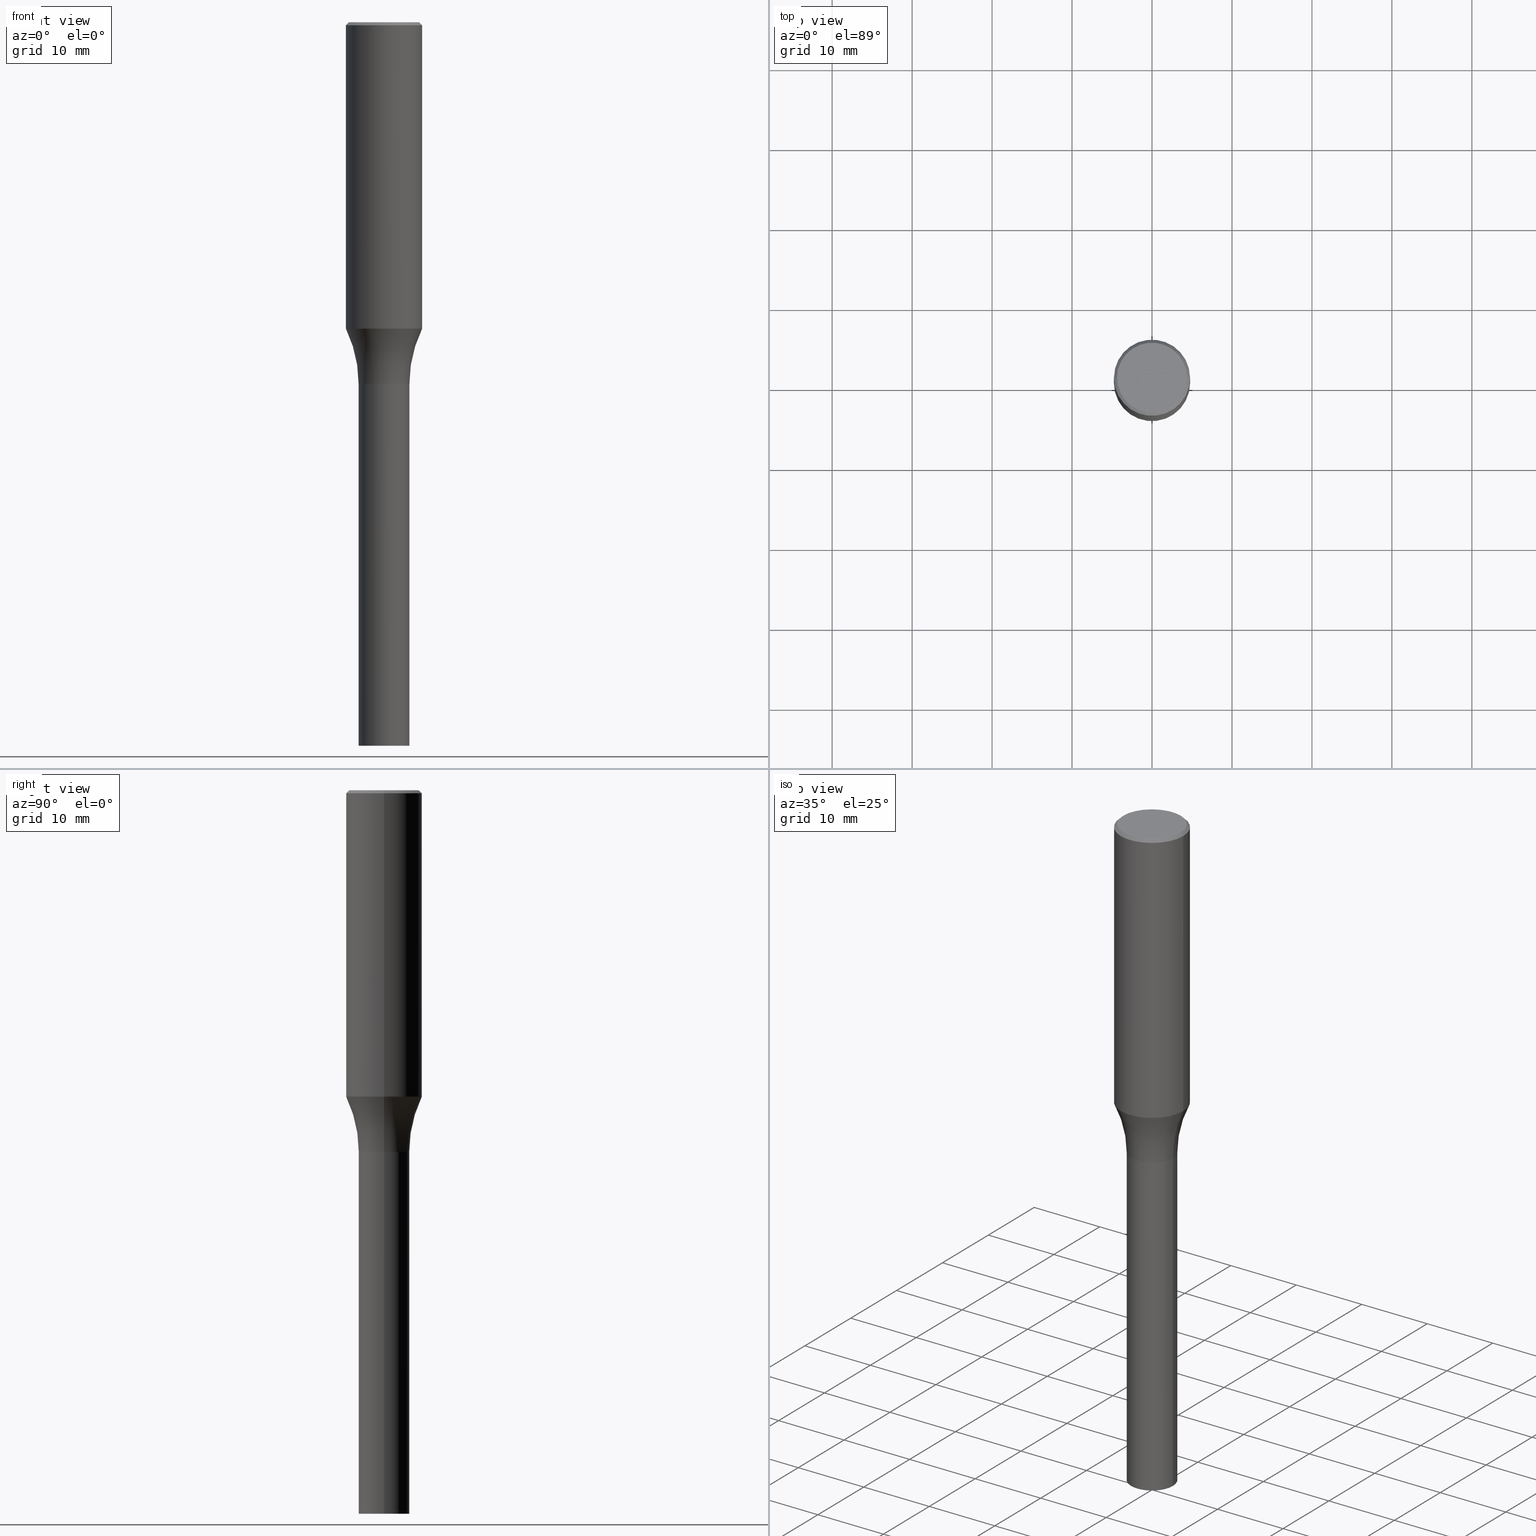
[diagram: canonical four-view strip — front | top / right | iso, engineering-drawing reading convention]
A machine part, canonical four-view strip (front | top / right | iso — engineering-drawing reading convention). The complete STEP part file that produces these views, byte-faithful:
ISO-10303-21;
HEADER;
FILE_DESCRIPTION (( 'STEP AP203' ),
    '1' );
FILE_NAME ('34505.STEP',
    '2024-03-04T15:28:11',
    ( '' ),
    ( '' ),
    'SwSTEP 2.0',
    'SolidWorks 2023',
    '' );
FILE_SCHEMA (( 'CONFIG_CONTROL_DESIGN' ));
ENDSEC;

DATA;
#1 = ORIENTED_EDGE ( 'NONE', *, *, #356, .F. ) ;
#2 = DIRECTION ( 'NONE',  ( 1.000000000000000000, -6.982962677686265922E-15, 4.876176775795935793E-29 ) ) ;
#3 = VERTEX_POINT ( 'NONE', #279 ) ;
#4 = CIRCLE ( 'NONE', #274, 0.1249999999999999861 ) ;
#5 = DIRECTION ( 'NONE',  ( -2.445468806185136877E-29, 3.491481338843145188E-15, 1.000000000000000000 ) ) ;
#6 = EDGE_CURVE ( 'NONE', #176, #272, #51, .T. ) ;
#7 = CYLINDRICAL_SURFACE ( 'NONE', #52, 0.1249999999999999584 ) ;
#8 = PERSON_AND_ORGANIZATION_ROLE ( 'creator' ) ;
#9 = CARTESIAN_POINT ( 'NONE',  ( 4.355379943815728162E-29, -6.218328264479641837E-15, -1.780999999999999917 ) ) ;
#10 = AXIS2_PLACEMENT_3D ( 'NONE', #12, #252, #251 ) ;
#11 = ORIENTED_EDGE ( 'NONE', *, *, #374, .T. ) ;
#12 = CARTESIAN_POINT ( 'NONE',  ( 3.689157981581848142E-29, -5.267139869524930466E-15, -1.508568816028707404 ) ) ;
#13 = DATE_TIME_ROLE ( 'creation_date' ) ;
#14 = CARTESIAN_POINT ( 'NONE',  ( -0.1725000000000000144, 1.230747171942204192E-15, -6.181208964945233235E-17 ) ) ;
#15 = CARTESIAN_POINT ( 'NONE',  ( -0.1875000000000000278, 1.256933281983527732E-15, -0.01499999999999999944 ) ) ;
#16 = EDGE_LOOP ( 'NONE', ( #64, #370, #96, #81 ) ) ;
#17 = EDGE_CURVE ( 'NONE', #417, #43, #453, .T. ) ;
#18 = CARTESIAN_POINT ( 'NONE',  ( 4.431189476807466720E-29, -6.326564185983779002E-15, -1.811999999999999611 ) ) ;
#19 = EDGE_LOOP ( 'NONE', ( #40, #59, #406, #360 ) ) ;
#20 = TOROIDAL_SURFACE ( 'NONE', #376, 0.7499999999999998890, 0.6250000000000000000 ) ;
#21 = DIRECTION ( 'NONE',  ( -2.445468806185136877E-29, 3.491481338843145188E-15, 1.000000000000000000 ) ) ;
#22 = VECTOR ( 'NONE', #185, 39.37007874015748143 ) ;
#23 = CIRCLE ( 'NONE', #418, 0.1725000000000000144 ) ;
#24 = ORIENTED_EDGE ( 'NONE', *, *, #203, .T. ) ;
#25 = AXIS2_PLACEMENT_3D ( 'NONE', #9, #392, #110 ) ;
#26 = DIRECTION ( 'NONE',  ( -2.445468806185136597E-29, 3.491481338843145583E-15, 1.000000000000000000 ) ) ;
#27 = APPLICATION_CONTEXT ( 'configuration controlled 3d designs of mechanical parts and assemblies' ) ;
#28 = EDGE_CURVE ( 'NONE', #457, #43, #347, .T. ) ;
#29 = EDGE_CURVE ( 'NONE', #451, #195, #353, .T. ) ;
#30 = ADVANCED_FACE ( 'NONE', ( #289 ), #61, .T. ) ;
#31 = AXIS2_PLACEMENT_3D ( 'NONE', #425, #182, #36 ) ;
#32 = COORDINATED_UNIVERSAL_TIME_OFFSET ( 5, 0, .BEHIND. ) ;
#33 = DIRECTION ( 'NONE',  ( -1.000000000000000000, 6.982962677686265922E-15, 0.000000000000000000 ) ) ;
#34 = DATE_AND_TIME ( #351, #310 ) ;
#35 = CARTESIAN_POINT ( 'NONE',  ( 3.668203209277705088E-31, -5.237222008264718399E-17, -0.01499999999999999944 ) ) ;
#36 = DIRECTION ( 'NONE',  ( 1.000000000000000000, -6.982962677686262766E-15, 0.000000000000000000 ) ) ;
#37 = DATE_AND_TIME ( #118, #309 ) ;
#38 = CARTESIAN_POINT ( 'NONE',  ( 4.355379943815728162E-29, -6.218328264479641837E-15, -1.780999999999999917 ) ) ;
#39 = DIRECTION ( 'NONE',  ( 1.000000000000000000, -6.982962677686259611E-15, 0.000000000000000000 ) ) ;
#40 = ORIENTED_EDGE ( 'NONE', *, *, #6, .F. ) ;
#41 = CYLINDRICAL_SURFACE ( 'NONE', #354, 0.1250000000000000555 ) ;
#42 = ADVANCED_FACE ( 'NONE', ( #385 ), #248, .T. ) ;
#43 = VERTEX_POINT ( 'NONE', #148 ) ;
#44 = DIRECTION ( 'NONE',  ( 1.000000000000000000, -6.982962677686263555E-15, 0.000000000000000000 ) ) ;
#45 = ADVANCED_FACE ( 'NONE', ( #149 ), #432, .T. ) ;
#46 = ORIENTED_EDGE ( 'NONE', *, *, #320, .F. ) ;
#47 = FACE_OUTER_BOUND ( 'NONE', #225, .T. ) ;
#48 = DIRECTION ( 'NONE',  ( -2.445468806185136877E-29, 3.491481338843145188E-15, 1.000000000000000000 ) ) ;
#49 = AXIS2_PLACEMENT_3D ( 'NONE', #124, #328, #267 ) ;
#50 = CARTESIAN_POINT ( 'NONE',  ( 3.689157981581848142E-29, -5.267139869524930466E-15, -1.508568816028707404 ) ) ;
#51 = LINE ( 'NONE', #341, #143 ) ;
#52 = AXIS2_PLACEMENT_3D ( 'NONE', #196, #130, #271 ) ;
#53 = ORIENTED_EDGE ( 'NONE', *, *, #135, .T. ) ;
#54 = ORIENTED_EDGE ( 'NONE', *, *, #220, .F. ) ;
#55 = ORIENTED_EDGE ( 'NONE', *, *, #291, .T. ) ;
#56 = LENGTH_MEASURE_WITH_UNIT ( LENGTH_MEASURE( 0.02539999999999999897 ), #60 );
#57 = DIRECTION ( 'NONE',  ( 1.000000000000000000, -6.982962677686265922E-15, 0.000000000000000000 ) ) ;
#58 = PRODUCT_RELATED_PRODUCT_CATEGORY ( 'detail', '', ( #120 ) ) ;
#59 = ORIENTED_EDGE ( 'NONE', *, *, #74, .T. ) ;
#60 =( LENGTH_UNIT ( ) NAMED_UNIT ( * ) SI_UNIT ( $, .METRE. ) );
#61 = CONICAL_SURFACE ( 'NONE', #87, 0.1875000000000000278, 0.7853981633974507215 ) ;
#62 = ADVANCED_FACE ( 'NONE', ( #461 ), #157, .T. ) ;
#63 = AXIS2_PLACEMENT_3D ( 'NONE', #337, #442, #305 ) ;
#64 = ORIENTED_EDGE ( 'NONE', *, *, #313, .T. ) ;
#65 = EDGE_CURVE ( 'NONE', #43, #272, #93, .T. ) ;
#66 = EDGE_LOOP ( 'NONE', ( #98, #239 ) ) ;
#67 = CARTESIAN_POINT ( 'NONE',  ( 0.1875000000000000278, -1.338715594664809642E-15, -0.01499999999999999944 ) ) ;
#68 = MECHANICAL_CONTEXT ( 'NONE', #224, 'mechanical' ) ;
#69 = CARTESIAN_POINT ( 'NONE',  ( 4.431189476807466720E-29, -6.326564185983779002E-15, -1.811999999999999611 ) ) ;
#70 = AXIS2_PLACEMENT_3D ( 'NONE', #210, #348, #244 ) ;
#71 = CARTESIAN_POINT ( 'NONE',  ( 0.1245000000000000689, -7.195943039355718545E-15, -1.811999999999999611 ) ) ;
#72 = DIRECTION ( 'NONE',  ( -2.445468806185136597E-29, 3.491481338843145583E-15, 1.000000000000000000 ) ) ;
#73 = PLANE ( 'NONE',  #207 ) ;
#74 = EDGE_CURVE ( 'NONE', #176, #417, #159, .T. ) ;
#75 = CC_DESIGN_PERSON_AND_ORGANIZATION_ASSIGNMENT ( #327, #8, ( #452 ) ) ;
#76 = VERTEX_POINT ( 'NONE', #334 ) ;
#77 = ADVANCED_FACE ( 'NONE', ( #114 ), #126, .F. ) ;
#78 = LINE ( 'NONE', #152, #115 ) ;
#79 = DIRECTION ( 'NONE',  ( 1.000000000000000000, -6.982962677686267499E-15, 4.876176775795936353E-29 ) ) ;
#80 = MANIFOLD_SOLID_BREP ( 'Body-Move/Copy2[1]', #112 ) ;
#81 = ORIENTED_EDGE ( 'NONE', *, *, #17, .F. ) ;
#82 = PERSON_AND_ORGANIZATION ( #237, #330 ) ;
#83 = CARTESIAN_POINT ( 'NONE',  ( 1.204561061900881047E-15, 0.1725000000000000144, -6.331865757751645696E-16 ) ) ;
#84 = CARTESIAN_POINT ( 'NONE',  ( 0.000000000000000000, 0.000000000000000000, 0.000000000000000000 ) ) ;
#85 = EDGE_LOOP ( 'NONE', ( #373, #91, #190, #131 ) ) ;
#86 = SECURITY_CLASSIFICATION_LEVEL ( 'unclassified' ) ;
#87 = AXIS2_PLACEMENT_3D ( 'NONE', #145, #104, #319 ) ;
#88 = FACE_OUTER_BOUND ( 'NONE', #336, .T. ) ;
#89 = AXIS2_PLACEMENT_3D ( 'NONE', #386, #181, #318 ) ;
#90 = CARTESIAN_POINT ( 'NONE',  ( 0.1250000000000000555, -1.330952686367006701E-14, -3.561999999999999833 ) ) ;
#91 = ORIENTED_EDGE ( 'NONE', *, *, #245, .T. ) ;
#92 = EDGE_LOOP ( 'NONE', ( #127, #46 ) ) ;
#93 = CIRCLE ( 'NONE', #349, 0.1875000000000000278 ) ;
#94 = DESIGN_CONTEXT ( 'detailed design', #27, 'design' ) ;
#95 = AXIS2_PLACEMENT_3D ( 'NONE', #38, #262, #288 ) ;
#96 = ORIENTED_EDGE ( 'NONE', *, *, #65, .F. ) ;
#97 =( NAMED_UNIT ( * ) SI_UNIT ( $, .STERADIAN. ) SOLID_ANGLE_UNIT ( ) );
#98 = ORIENTED_EDGE ( 'NONE', *, *, #29, .F. ) ;
#99 = UNCERTAINTY_MEASURE_WITH_UNIT (LENGTH_MEASURE( 1.000000000000000082E-05 ), #205, 'distance_accuracy_value', 'NONE');
#100 = ORIENTED_EDGE ( 'NONE', *, *, #294, .T. ) ;
#101 = VECTOR ( 'NONE', #48, 39.37007874015748143 ) ;
#102 = APPROVAL_ROLE ( '' ) ;
#103 = DIMENSIONAL_EXPONENTS ( 1.000000000000000000, 0.000000000000000000, 0.000000000000000000, 0.000000000000000000, 0.000000000000000000, 0.000000000000000000, 0.000000000000000000 ) ;
#104 = DIRECTION ( 'NONE',  ( 2.445468806185136597E-29, -3.491481338843145583E-15, -1.000000000000000000 ) ) ;
#105 = APPLICATION_PROTOCOL_DEFINITION ( 'international standard', 'config_control_design', 1994, #224 ) ;
#106 = CC_DESIGN_APPROVAL ( #134, ( #339 ) ) ;
#107 = CC_DESIGN_APPROVAL ( #448, ( #211 ) ) ;
#108 = DIRECTION ( 'NONE',  ( 7.105427357601001859E-15, 1.000000000000000000, -3.491481338843145583E-15 ) ) ;
#109 = EDGE_CURVE ( 'NONE', #242, #273, #4, .T. ) ;
#110 = DIRECTION ( 'NONE',  ( 1.000000000000000000, -6.982962677686265133E-15, 0.000000000000000000 ) ) ;
#111 = ADVANCED_FACE ( 'NONE', ( #258 ), #165, .T. ) ;
#112 = CLOSED_SHELL ( 'NONE', ( #111, #281, #387, #450 ) ) ;
#113 = CARTESIAN_POINT ( 'NONE',  ( -0.1250000000000000000, -5.383394935196874435E-15, -1.811499999999999888 ) ) ;
#114 = FACE_OUTER_BOUND ( 'NONE', #92, .T. ) ;
#115 = VECTOR ( 'NONE', #300, 39.37007874015748143 ) ;
#116 = ORIENTED_EDGE ( 'NONE', *, *, #462, .F. ) ;
#117 = LINE ( 'NONE', #293, #101 ) ;
#118 = CALENDAR_DATE ( 2024, 4, 3 ) ;
#119 = CYLINDRICAL_SURFACE ( 'NONE', #138, 0.1875000000000000555 ) ;
#120 = PRODUCT ( '34505', '34505', '', ( #68 ) ) ;
#121 = PERSON_AND_ORGANIZATION_ROLE ( 'classification_officer' ) ;
#122 = CARTESIAN_POINT ( 'NONE',  ( 4.429966742404374479E-29, -6.324818445314357499E-15, -1.811499999999999888 ) ) ;
#123 = CALENDAR_DATE ( 2024, 4, 3 ) ;
#124 = CARTESIAN_POINT ( 'NONE',  ( 8.728703347108280081E-16, 0.1249999999999937272, -1.812000000000000277 ) ) ;
#125 = EDGE_LOOP ( 'NONE', ( #1, #24, #221, #297 ) ) ;
#126 = PLANE ( 'NONE',  #213 ) ;
#127 = ORIENTED_EDGE ( 'NONE', *, *, #212, .F. ) ;
#128 = LOCAL_TIME ( 10, 28, 11.00000000000000000, #222 ) ;
#129 = AXIS2_PLACEMENT_3D ( 'NONE', #69, #146, #246 ) ;
#130 = DIRECTION ( 'NONE',  ( -2.445468806185136597E-29, 3.491481338843145583E-15, 1.000000000000000000 ) ) ;
#131 = ORIENTED_EDGE ( 'NONE', *, *, #374, .F. ) ;
#132 = ORIENTED_EDGE ( 'NONE', *, *, #28, .T. ) ;
#133 = EDGE_CURVE ( 'NONE', #3, #234, #136, .T. ) ;
#134 = APPROVAL ( #366, 'UNSPECIFIED' ) ;
#135 = EDGE_CURVE ( 'NONE', #234, #3, #256, .T. ) ;
#136 = CIRCLE ( 'NONE', #63, 0.1250000000000000555 ) ;
#137 = CARTESIAN_POINT ( 'NONE',  ( 0.1875000000000000555, -1.309305502066175205E-15, 9.142831454617382414E-30 ) ) ;
#138 = AXIS2_PLACEMENT_3D ( 'NONE', #296, #263, #400 ) ;
#139 = ORIENTED_EDGE ( 'NONE', *, *, #212, .T. ) ;
#140 = ORIENTED_EDGE ( 'NONE', *, *, #65, .T. ) ;
#141 = ORIENTED_EDGE ( 'NONE', *, *, #109, .F. ) ;
#142 = ORIENTED_EDGE ( 'NONE', *, *, #315, .T. ) ;
#143 = VECTOR ( 'NONE', #343, 39.37007874015748143 ) ;
#144 = CIRCLE ( 'NONE', #436, 0.1249999999999999861 ) ;
#145 = CARTESIAN_POINT ( 'NONE',  ( 3.668203209277705088E-31, -5.237222008264718399E-17, -0.01499999999999999944 ) ) ;
#146 = DIRECTION ( 'NONE',  ( -2.445468806185136597E-29, 3.491481338843145583E-15, 1.000000000000000000 ) ) ;
#147 = APPROVAL_STATUS ( 'not_yet_approved' ) ;
#148 = CARTESIAN_POINT ( 'NONE',  ( 0.1875000000000000278, -1.338715594664809642E-15, -0.01499999999999999944 ) ) ;
#149 = FACE_OUTER_BOUND ( 'NONE', #377, .T. ) ;
#150 = AXIS2_PLACEMENT_3D ( 'NONE', #335, #230, #372 ) ;
#151 = DIRECTION ( 'NONE',  ( -1.000000000000000000, 7.105427357601001859E-15, 0.000000000000000000 ) ) ;
#152 = CARTESIAN_POINT ( 'NONE',  ( -0.1249999999999999584, 8.881784197001249365E-16, -6.148668862818630826E-30 ) ) ;
#153 = CC_DESIGN_DATE_AND_TIME_ASSIGNMENT ( #198, #226, ( #339 ) ) ;
#154 = ADVANCED_FACE ( 'NONE', ( #88 ), #20, .F. ) ;
#155 = SHAPE_DEFINITION_REPRESENTATION ( #440, #422 ) ;
#156 = ORIENTED_EDGE ( 'NONE', *, *, #109, .T. ) ;
#157 = CYLINDRICAL_SURFACE ( 'NONE', #307, 0.1249999999999999584 ) ;
#158 = FACE_OUTER_BOUND ( 'NONE', #346, .T. ) ;
#159 = CIRCLE ( 'NONE', #414, 0.1875000000000000555 ) ;
#160 = ORIENTED_EDGE ( 'NONE', *, *, #356, .T. ) ;
#161 = CARTESIAN_POINT ( 'NONE',  ( 4.355379943815728162E-29, -6.218328264479641837E-15, -1.780999999999999917 ) ) ;
#162 = APPROVAL_DATE_TIME ( #401, #410 ) ;
#163 = ORIENTED_EDGE ( 'NONE', *, *, #375, .T. ) ;
#164 = CYLINDRICAL_SURFACE ( 'NONE', #282, 0.1875000000000000555 ) ;
#165 = CYLINDRICAL_SURFACE ( 'NONE', #286, 0.1250000000000000555 ) ;
#166 = PERSON_AND_ORGANIZATION ( #237, #330 ) ;
#167 = DIRECTION ( 'NONE',  ( 1.000000000000000000, -6.982962677686263555E-15, 0.000000000000000000 ) ) ;
#168 = APPROVAL_DATE_TIME ( #37, #134 ) ;
#169 = CIRCLE ( 'NONE', #25, 0.1249999999999999584 ) ;
#170 = ADVANCED_FACE ( 'NONE', ( #447 ), #7, .T. ) ;
#171 = ADVANCED_FACE ( 'NONE', ( #408 ), #119, .T. ) ;
#172 = APPROVAL_PERSON_ORGANIZATION ( #166, #410, #193 ) ;
#173 = LINE ( 'NONE', #15, #228 ) ;
#174 = TOROIDAL_SURFACE ( 'NONE', #95, 0.7499999999999998890, 0.6250000000000000000 ) ;
#175 = ORIENTED_EDGE ( 'NONE', *, *, #133, .T. ) ;
#176 = VERTEX_POINT ( 'NONE', #257 ) ;
#177 = COORDINATED_UNIVERSAL_TIME_OFFSET ( 5, 0, .BEHIND. ) ;
#178 = CIRCLE ( 'NONE', #10, 0.1875000000000000555 ) ;
#179 = ADVANCED_FACE ( 'NONE', ( #280 ), #304, .T. ) ;
#180 = CARTESIAN_POINT ( 'NONE',  ( 3.668203209277705088E-31, -5.237222008264718399E-17, -0.01499999999999999944 ) ) ;
#181 = DIRECTION ( 'NONE',  ( -2.445468806185136597E-29, 3.491481338843145583E-15, 1.000000000000000000 ) ) ;
#182 = DIRECTION ( 'NONE',  ( -2.445468806185136597E-29, 3.491481338843145583E-15, 1.000000000000000000 ) ) ;
#183 = PERSON_AND_ORGANIZATION_ROLE ( 'creator' ) ;
#184 = CARTESIAN_POINT ( 'NONE',  ( 0.000000000000000000, 0.000000000000000000, 0.000000000000000000 ) ) ;
#185 = DIRECTION ( 'NONE',  ( 0.7071067811865492381, -7.319954787623260779E-15, -0.7071067811865457964 ) ) ;
#186 = CARTESIAN_POINT ( 'NONE',  ( 0.000000000000000000, 0.000000000000000000, 0.000000000000000000 ) ) ;
#187 = DIRECTION ( 'NONE',  ( -2.445468806185136597E-29, 3.491481338843145583E-15, 1.000000000000000000 ) ) ;
#188 = ORIENTED_EDGE ( 'NONE', *, *, #322, .F. ) ;
#189 = DIRECTION ( 'NONE',  ( -2.445468806185136877E-29, 3.491481338843145188E-15, 1.000000000000000000 ) ) ;
#190 = ORIENTED_EDGE ( 'NONE', *, *, #462, .T. ) ;
#191 = CARTESIAN_POINT ( 'NONE',  ( 8.758450869083629996E-29, -1.236836032911767685E-14, -3.561999999999999833 ) ) ;
#192 = DIRECTION ( 'NONE',  ( -2.438088387897960049E-29, 3.491481338843145188E-15, 1.000000000000000000 ) ) ;
#193 = APPROVAL_ROLE ( '' ) ;
#194 = CLOSED_SHELL ( 'NONE', ( #233, #30, #45, #170, #229, #154, #62, #179, #77, #411, #42, #171 ) ) ;
#195 = VERTEX_POINT ( 'NONE', #215 ) ;
#196 = CARTESIAN_POINT ( 'NONE',  ( 0.000000000000000000, 0.000000000000000000, 0.000000000000000000 ) ) ;
#197 = APPROVAL_PERSON_ORGANIZATION ( #421, #448, #102 ) ;
#198 = DATE_AND_TIME ( #123, #128 ) ;
#199 = DIRECTION ( 'NONE',  ( 1.000000000000000000, -6.982962677686265133E-15, 0.000000000000000000 ) ) ;
#200 = DIRECTION ( 'NONE',  ( -2.445468806185136597E-29, 3.491481338843145583E-15, 1.000000000000000000 ) ) ;
#201 = CARTESIAN_POINT ( 'NONE',  ( 4.431189476807466720E-29, -6.326564185983779002E-15, -1.811999999999999611 ) ) ;
#202 = VECTOR ( 'NONE', #21, 39.37007874015748143 ) ;
#203 = EDGE_CURVE ( 'NONE', #195, #451, #382, .T. ) ;
#204 = VECTOR ( 'NONE', #331, 39.37007874015748143 ) ;
#205 =( CONVERSION_BASED_UNIT ( 'INCH', #56 ) LENGTH_UNIT ( ) NAMED_UNIT ( #103 ) );
#206 = ORIENTED_EDGE ( 'NONE', *, *, #292, .F. ) ;
#207 = AXIS2_PLACEMENT_3D ( 'NONE', #83, #430, #362 ) ;
#208 = VERTEX_POINT ( 'NONE', #460 ) ;
#209 = ORIENTED_EDGE ( 'NONE', *, *, #291, .F. ) ;
#210 = CARTESIAN_POINT ( 'NONE',  ( 0.000000000000000000, 0.000000000000000000, 0.000000000000000000 ) ) ;
#211 = PRODUCT_DEFINITION ( 'UNKNOWN', '', #452, #94 ) ;
#212 = EDGE_CURVE ( 'NONE', #323, #76, #467, .T. ) ;
#213 = AXIS2_PLACEMENT_3D ( 'NONE', #201, #192, #433 ) ;
#214 = DIRECTION ( 'NONE',  ( 1.000000000000000000, -6.982962677686259611E-15, 0.000000000000000000 ) ) ;
#215 = CARTESIAN_POINT ( 'NONE',  ( -0.1250000000000000555, -8.493431937771405711E-15, -3.561999999999999833 ) ) ;
#216 = AXIS2_PLACEMENT_3D ( 'NONE', #277, #26, #380 ) ;
#217 = FACE_OUTER_BOUND ( 'NONE', #125, .T. ) ;
#218 = ORIENTED_EDGE ( 'NONE', *, *, #220, .T. ) ;
#219 = DIRECTION ( 'NONE',  ( -2.445468806185136597E-29, 3.491481338843145583E-15, 1.000000000000000000 ) ) ;
#220 = EDGE_CURVE ( 'NONE', #457, #324, #454, .T. ) ;
#221 = ORIENTED_EDGE ( 'NONE', *, *, #409, .T. ) ;
#222 = COORDINATED_UNIVERSAL_TIME_OFFSET ( 5, 0, .BEHIND. ) ;
#223 = LINE ( 'NONE', #364, #204 ) ;
#224 = APPLICATION_CONTEXT ( 'configuration controlled 3d designs of mechanical parts and assemblies' ) ;
#225 = EDGE_LOOP ( 'NONE', ( #53, #175 ) ) ;
#226 = DATE_TIME_ROLE ( 'classification_date' ) ;
#227 = DIRECTION ( 'NONE',  ( 1.000000000000000000, -6.982962677686265922E-15, 0.000000000000000000 ) ) ;
#228 = VECTOR ( 'NONE', #260, 39.37007874015748143 ) ;
#229 = ADVANCED_FACE ( 'NONE', ( #464 ), #174, .F. ) ;
#230 = DIRECTION ( 'NONE',  ( -2.445468806185136597E-29, 3.491481338843145583E-15, 1.000000000000000000 ) ) ;
#231 = EDGE_LOOP ( 'NONE', ( #449, #381, #338, #141 ) ) ;
#232 = CC_DESIGN_PERSON_AND_ORGANIZATION_ASSIGNMENT ( #82, #121, ( #339 ) ) ;
#233 = ADVANCED_FACE ( 'NONE', ( #431 ), #164, .T. ) ;
#234 = VERTEX_POINT ( 'NONE', #321 ) ;
#235 = CIRCLE ( 'NONE', #216, 0.1249999999999999584 ) ;
#236 = CARTESIAN_POINT ( 'NONE',  ( 1.511595370828340099E-45, -2.158157575259326350E-31, -6.181208964944381512E-17 ) ) ;
#237 = PERSON ( 'UNSPECIFIED', 'UNSPECIFIED', 'UNSPECIFIED', ('UNSPECIFIED'), ('UNSPECIFIED'), ('UNSPECIFIED') ) ;
#238 = CARTESIAN_POINT ( 'NONE',  ( 0.1725000000000000144, -1.261075749640199505E-15, -6.181208964943518695E-17 ) ) ;
#239 = ORIENTED_EDGE ( 'NONE', *, *, #203, .F. ) ;
#240 = AXIS2_PLACEMENT_3D ( 'NONE', #180, #466, #33 ) ;
#241 = VECTOR ( 'NONE', #438, 39.37007874015748143 ) ;
#242 = VERTEX_POINT ( 'NONE', #113 ) ;
#243 = CC_DESIGN_PERSON_AND_ORGANIZATION_ASSIGNMENT ( #247, #285, ( #120 ) ) ;
#244 = DIRECTION ( 'NONE',  ( 1.000000000000000000, 0.000000000000000000, 0.000000000000000000 ) ) ;
#245 = EDGE_CURVE ( 'NONE', #176, #456, #250, .T. ) ;
#246 = DIRECTION ( 'NONE',  ( 1.000000000000000000, -6.982962677686262766E-15, 0.000000000000000000 ) ) ;
#247 = PERSON_AND_ORGANIZATION ( #237, #330 ) ;
#248 = CONICAL_SURFACE ( 'NONE', #240, 0.1875000000000000278, 0.7853981633974507215 ) ;
#249 = DIRECTION ( 'NONE',  ( -2.445468806185136597E-29, 3.491481338843145583E-15, 1.000000000000000000 ) ) ;
#250 = CIRCLE ( 'NONE', #459, 0.6250000000000000000 ) ;
#251 = DIRECTION ( 'NONE',  ( 1.000000000000000000, -6.982962677686265922E-15, 0.000000000000000000 ) ) ;
#252 = DIRECTION ( 'NONE',  ( -2.445468806185136597E-29, 3.491481338843145583E-15, 1.000000000000000000 ) ) ;
#253 = CARTESIAN_POINT ( 'NONE',  ( 0.1875000000000000555, -6.576445371591104685E-15, -1.508568816028707404 ) ) ;
#254 = FACE_OUTER_BOUND ( 'NONE', #66, .T. ) ;
#255 = ORIENTED_EDGE ( 'NONE', *, *, #135, .F. ) ;
#256 = CIRCLE ( 'NONE', #368, 0.1250000000000000555 ) ;
#257 = CARTESIAN_POINT ( 'NONE',  ( -0.1875000000000000555, -3.934872239974741828E-15, -1.508568816028707404 ) ) ;
#258 = FACE_OUTER_BOUND ( 'NONE', #299, .T. ) ;
#259 = APPROVAL_STATUS ( 'not_yet_approved' ) ;
#260 = DIRECTION ( 'NONE',  ( -0.7071067811865492381, 2.468850131082275204E-15, -0.7071067811865457964 ) ) ;
#261 = EDGE_CURVE ( 'NONE', #242, #456, #78, .T. ) ;
#262 = DIRECTION ( 'NONE',  ( -2.445468806185136597E-29, 3.491481338843145583E-15, 1.000000000000000000 ) ) ;
#263 = DIRECTION ( 'NONE',  ( -2.445468806185136597E-29, 3.491481338843145583E-15, 1.000000000000000000 ) ) ;
#264 = CALENDAR_DATE ( 2024, 4, 3 ) ;
#265 = DIRECTION ( 'NONE',  ( -2.445468806185136597E-29, 3.491481338843145583E-15, 1.000000000000000000 ) ) ;
#266 = APPROVAL_ROLE ( '' ) ;
#267 = DIRECTION ( 'NONE',  ( -1.000000000000000000, 6.982962677686265922E-15, -4.876176775795935793E-29 ) ) ;
#268 = AXIS2_PLACEMENT_3D ( 'NONE', #314, #249, #214 ) ;
#269 = AXIS2_PLACEMENT_3D ( 'NONE', #191, #424, #352 ) ;
#270 = DIRECTION ( 'NONE',  ( 1.000000000000000000, -6.982962677686267499E-15, 4.876176775795936353E-29 ) ) ;
#271 = DIRECTION ( 'NONE',  ( 1.000000000000000000, -6.982962677686267499E-15, 4.876176775795936353E-29 ) ) ;
#272 = VERTEX_POINT ( 'NONE', #389 ) ;
#273 = VERTEX_POINT ( 'NONE', #428 ) ;
#274 = AXIS2_PLACEMENT_3D ( 'NONE', #122, #402, #44 ) ;
#275 = ORIENTED_EDGE ( 'NONE', *, *, #322, .T. ) ;
#276 = CARTESIAN_POINT ( 'NONE',  ( -0.1249999999999999584, -4.632511042377129611E-15, -1.780999999999999917 ) ) ;
#277 = CARTESIAN_POINT ( 'NONE',  ( 4.355379943815728162E-29, -6.218328264479641837E-15, -1.780999999999999917 ) ) ;
#278 = EDGE_LOOP ( 'NONE', ( #413, #156, #55, #116 ) ) ;
#279 = CARTESIAN_POINT ( 'NONE',  ( -0.1250000000000000555, -8.493431937771405711E-15, -1.811999999999999611 ) ) ;
#280 = FACE_OUTER_BOUND ( 'NONE', #231, .T. ) ;
#281 = ADVANCED_FACE ( 'NONE', ( #254 ), #441, .F. ) ;
#282 = AXIS2_PLACEMENT_3D ( 'NONE', #184, #295, #2 ) ;
#283 = CARTESIAN_POINT ( 'NONE',  ( 8.710759887631456325E-29, -1.243665652895928367E-14, -3.561999999999999833 ) ) ;
#284 = PERSON_AND_ORGANIZATION ( #237, #330 ) ;
#285 = PERSON_AND_ORGANIZATION_ROLE ( 'design_owner' ) ;
#286 = AXIS2_PLACEMENT_3D ( 'NONE', #326, #301, #79 ) ;
#287 = AXIS2_PLACEMENT_3D ( 'NONE', #398, #468, #199 ) ;
#288 = DIRECTION ( 'NONE',  ( 1.000000000000000000, -6.982962677686265922E-15, 4.883557194083112340E-29 ) ) ;
#289 = FACE_OUTER_BOUND ( 'NONE', #455, .T. ) ;
#290 = DIRECTION ( 'NONE',  ( 1.000000000000000000, -6.982962677686267499E-15, 4.876176775795936353E-29 ) ) ;
#291 = EDGE_CURVE ( 'NONE', #273, #208, #325, .T. ) ;
#292 = EDGE_CURVE ( 'NONE', #323, #273, #399, .T. ) ;
#293 = CARTESIAN_POINT ( 'NONE',  ( -0.1250000000000000555, 8.881784197001256268E-16, -6.148668862818635730E-30 ) ) ;
#294 = EDGE_CURVE ( 'NONE', #76, #242, #223, .T. ) ;
#295 = DIRECTION ( 'NONE',  ( -2.445468806185136597E-29, 3.491481338843145583E-15, 1.000000000000000000 ) ) ;
#296 = CARTESIAN_POINT ( 'NONE',  ( 0.000000000000000000, 0.000000000000000000, 0.000000000000000000 ) ) ;
#297 = ORIENTED_EDGE ( 'NONE', *, *, #133, .F. ) ;
#298 = PERSON_AND_ORGANIZATION_ROLE ( 'design_supplier' ) ;
#299 = EDGE_LOOP ( 'NONE', ( #363, #160, #255, #437 ) ) ;
#300 = DIRECTION ( 'NONE',  ( -2.445468806185136877E-29, 3.491481338843145188E-15, 1.000000000000000000 ) ) ;
#301 = DIRECTION ( 'NONE',  ( -2.445468806185136597E-29, 3.491481338843145583E-15, 1.000000000000000000 ) ) ;
#302 = COORDINATED_UNIVERSAL_TIME_OFFSET ( 5, 0, .BEHIND. ) ;
#303 = PLANE ( 'NONE',  #49 ) ;
#304 = CONICAL_SURFACE ( 'NONE', #316, 0.1245000000000000689, 0.7853981633974653764 ) ;
#305 = DIRECTION ( 'NONE',  ( 1.000000000000000000, -6.982962677686267499E-15, 0.000000000000000000 ) ) ;
#306 = ORIENTED_EDGE ( 'NONE', *, *, #261, .T. ) ;
#307 = AXIS2_PLACEMENT_3D ( 'NONE', #84, #265, #270 ) ;
#308 =( NAMED_UNIT ( * ) PLANE_ANGLE_UNIT ( ) SI_UNIT ( $, .RADIAN. ) );
#309 = LOCAL_TIME ( 10, 28, 11.00000000000000000, #361 ) ;
#310 = LOCAL_TIME ( 10, 28, 11.00000000000000000, #177 ) ;
#311 = ORIENTED_EDGE ( 'NONE', *, *, #245, .F. ) ;
#312 = CC_DESIGN_PERSON_AND_ORGANIZATION_ASSIGNMENT ( #397, #298, ( #452 ) ) ;
#313 = EDGE_CURVE ( 'NONE', #417, #176, #178, .T. ) ;
#314 = CARTESIAN_POINT ( 'NONE',  ( 8.710759887631456325E-29, -1.243665652895928367E-14, -3.561999999999999833 ) ) ;
#315 = EDGE_CURVE ( 'NONE', #272, #43, #423, .T. ) ;
#316 = AXIS2_PLACEMENT_3D ( 'NONE', #357, #187, #390 ) ;
#317 = APPROVAL_DATE_TIME ( #34, #448 ) ;
#318 = DIRECTION ( 'NONE',  ( 1.000000000000000000, -6.982962677686266711E-15, 4.874714842691873619E-29 ) ) ;
#319 = DIRECTION ( 'NONE',  ( -1.000000000000000000, 6.982962677686265922E-15, 0.000000000000000000 ) ) ;
#320 = EDGE_CURVE ( 'NONE', #76, #323, #340, .T. ) ;
#321 = CARTESIAN_POINT ( 'NONE',  ( 0.1250000000000000555, -7.199434520694563130E-15, -1.811999999999999611 ) ) ;
#322 = EDGE_CURVE ( 'NONE', #324, #272, #173, .T. ) ;
#323 = VERTEX_POINT ( 'NONE', #367 ) ;
#324 = VERTEX_POINT ( 'NONE', #14 ) ;
#325 = LINE ( 'NONE', #393, #446 ) ;
#326 = CARTESIAN_POINT ( 'NONE',  ( 0.000000000000000000, 0.000000000000000000, 0.000000000000000000 ) ) ;
#327 = PERSON_AND_ORGANIZATION ( #237, #330 ) ;
#328 = DIRECTION ( 'NONE',  ( 2.438088387897960049E-29, -3.491481338843145188E-15, -1.000000000000000000 ) ) ;
#329 = ORIENTED_EDGE ( 'NONE', *, *, #420, .F. ) ;
#330 = ORGANIZATION ( 'UNSPECIFIED', 'UNSPECIFIED', '' ) ;
#331 = DIRECTION ( 'NONE',  ( -0.7071067811865595631, 7.493145998870398336E-15, 0.7071067811865354713 ) ) ;
#332 = ORIENTED_EDGE ( 'NONE', *, *, #375, .F. ) ;
#333 = MANIFOLD_SOLID_BREP ( 'Body-Move/Copy2[2]', #194 ) ;
#334 = CARTESIAN_POINT ( 'NONE',  ( -0.1245000000000000689, -5.439289252788342678E-15, -1.811999999999999611 ) ) ;
#335 = CARTESIAN_POINT ( 'NONE',  ( 4.431189476807466720E-29, -6.326564185983779002E-15, -1.811999999999999611 ) ) ;
#336 = EDGE_LOOP ( 'NONE', ( #311, #383, #11, #344 ) ) ;
#337 = CARTESIAN_POINT ( 'NONE',  ( 4.431189476807466720E-29, -6.326564185983779002E-15, -1.811999999999999611 ) ) ;
#338 = ORIENTED_EDGE ( 'NONE', *, *, #292, .T. ) ;
#339 = SECURITY_CLASSIFICATION ( '', '', #86 ) ;
#340 = CIRCLE ( 'NONE', #150, 0.1245000000000000689 ) ;
#341 = CARTESIAN_POINT ( 'NONE',  ( -0.1875000000000000555, 1.332267629550188243E-15, -9.223003294227950793E-30 ) ) ;
#342 = LOCAL_TIME ( 10, 28, 11.00000000000000000, #302 ) ;
#343 = DIRECTION ( 'NONE',  ( -2.445468806185136877E-29, 3.491481338843145188E-15, 1.000000000000000000 ) ) ;
#344 = ORIENTED_EDGE ( 'NONE', *, *, #420, .T. ) ;
#345 = AXIS2_PLACEMENT_3D ( 'NONE', #283, #429, #39 ) ;
#346 = EDGE_LOOP ( 'NONE', ( #355, #218 ) ) ;
#347 = LINE ( 'NONE', #67, #22 ) ;
#348 = DIRECTION ( 'NONE',  ( 0.000000000000000000, 0.000000000000000000, 1.000000000000000000 ) ) ;
#349 = AXIS2_PLACEMENT_3D ( 'NONE', #439, #444, #359 ) ;
#350 = CIRCLE ( 'NONE', #287, 0.6250000000000000000 ) ;
#351 = CALENDAR_DATE ( 2024, 4, 3 ) ;
#352 = DIRECTION ( 'NONE',  ( 1.000000000000000000, -6.982962677686265922E-15, 4.876176775795935793E-29 ) ) ;
#353 = CIRCLE ( 'NONE', #268, 0.1250000000000000555 ) ;
#354 = AXIS2_PLACEMENT_3D ( 'NONE', #186, #403, #290 ) ;
#355 = ORIENTED_EDGE ( 'NONE', *, *, #458, .T. ) ;
#356 = EDGE_CURVE ( 'NONE', #195, #3, #117, .T. ) ;
#357 = CARTESIAN_POINT ( 'NONE',  ( 4.431189476807466720E-29, -6.326564185983779002E-15, -1.811999999999999611 ) ) ;
#358 = LINE ( 'NONE', #427, #404 ) ;
#359 = DIRECTION ( 'NONE',  ( 1.000000000000000000, -6.982962677686265922E-15, 0.000000000000000000 ) ) ;
#360 = ORIENTED_EDGE ( 'NONE', *, *, #315, .F. ) ;
#361 = COORDINATED_UNIVERSAL_TIME_OFFSET ( 5, 0, .BEHIND. ) ;
#362 = DIRECTION ( 'NONE',  ( -1.000000000000000000, 6.982962677686265922E-15, -4.876176775795935793E-29 ) ) ;
#363 = ORIENTED_EDGE ( 'NONE', *, *, #29, .T. ) ;
#364 = CARTESIAN_POINT ( 'NONE',  ( -0.1245000000000000689, -5.441938479962453879E-15, -1.811999999999999611 ) ) ;
#365 = EDGE_LOOP ( 'NONE', ( #465, #396, #275, #142 ) ) ;
#366 = APPROVAL_STATUS ( 'not_yet_approved' ) ;
#367 = CARTESIAN_POINT ( 'NONE',  ( 0.1245000000000000689, -7.195943039355718545E-15, -1.811999999999999611 ) ) ;
#368 = AXIS2_PLACEMENT_3D ( 'NONE', #18, #219, #405 ) ;
#369 = DIRECTION ( 'NONE',  ( -2.445468806185136597E-29, 3.491481338843145583E-15, 1.000000000000000000 ) ) ;
#370 = ORIENTED_EDGE ( 'NONE', *, *, #6, .T. ) ;
#371 = DIRECTION ( 'NONE',  ( 1.000000000000000000, -6.982962677686265922E-15, 4.883557194083112340E-29 ) ) ;
#372 = DIRECTION ( 'NONE',  ( 1.000000000000000000, -6.982962677686262766E-15, 0.000000000000000000 ) ) ;
#373 = ORIENTED_EDGE ( 'NONE', *, *, #74, .F. ) ;
#374 = EDGE_CURVE ( 'NONE', #417, #208, #350, .T. ) ;
#375 = EDGE_CURVE ( 'NONE', #273, #242, #144, .T. ) ;
#376 = AXIS2_PLACEMENT_3D ( 'NONE', #161, #369, #371 ) ;
#377 = EDGE_LOOP ( 'NONE', ( #139, #100, #332, #206 ) ) ;
#378 = DIRECTION ( 'NONE',  ( 1.000000000000000000, -6.982962677686266711E-15, 4.874714842691873619E-29 ) ) ;
#379 = EDGE_LOOP ( 'NONE', ( #163, #306, #329, #209 ) ) ;
#380 = DIRECTION ( 'NONE',  ( 1.000000000000000000, -6.982962677686265133E-15, 0.000000000000000000 ) ) ;
#381 = ORIENTED_EDGE ( 'NONE', *, *, #320, .T. ) ;
#382 = CIRCLE ( 'NONE', #345, 0.1250000000000000555 ) ;
#383 = ORIENTED_EDGE ( 'NONE', *, *, #313, .F. ) ;
#384 = APPLICATION_PROTOCOL_DEFINITION ( 'international standard', 'config_control_design', 1994, #27 ) ;
#385 = FACE_OUTER_BOUND ( 'NONE', #365, .T. ) ;
#386 = CARTESIAN_POINT ( 'NONE',  ( 1.511595370828340099E-45, -2.158157575259326350E-31, -6.181208964944381512E-17 ) ) ;
#387 = ADVANCED_FACE ( 'NONE', ( #217 ), #41, .T. ) ;
#388 = AXIS2_PLACEMENT_3D ( 'NONE', #35, #72, #57 ) ;
#389 = CARTESIAN_POINT ( 'NONE',  ( -0.1875000000000000278, 1.256933281983527732E-15, -0.01499999999999999944 ) ) ;
#390 = DIRECTION ( 'NONE',  ( 1.000000000000000000, -6.982962677686262766E-15, 0.000000000000000000 ) ) ;
#391 = CC_DESIGN_DATE_AND_TIME_ASSIGNMENT ( #419, #13, ( #211 ) ) ;
#392 = DIRECTION ( 'NONE',  ( -2.445468806185136597E-29, 3.491481338843145583E-15, 1.000000000000000000 ) ) ;
#393 = CARTESIAN_POINT ( 'NONE',  ( 0.1249999999999999584, -8.728703347107831416E-16, 6.095220969744918340E-30 ) ) ;
#394 = DIRECTION ( 'NONE',  ( -2.445468806185136597E-29, 3.491481338843145583E-15, 1.000000000000000000 ) ) ;
#395 = CARTESIAN_POINT ( 'NONE',  ( -0.7499999999999998890, -8.892577462788912314E-16, -1.780999999999999917 ) ) ;
#396 = ORIENTED_EDGE ( 'NONE', *, *, #458, .F. ) ;
#397 = PERSON_AND_ORGANIZATION ( #237, #330 ) ;
#398 = CARTESIAN_POINT ( 'NONE',  ( 0.7499999999999998890, -1.145555027274434187E-14, -1.780999999999999917 ) ) ;
#399 = LINE ( 'NONE', #71, #241 ) ;
#400 = DIRECTION ( 'NONE',  ( 1.000000000000000000, -6.982962677686265922E-15, 4.876176775795935793E-29 ) ) ;
#401 = DATE_AND_TIME ( #264, #342 ) ;
#402 = DIRECTION ( 'NONE',  ( -2.445468806185136597E-29, 3.491481338843145583E-15, 1.000000000000000000 ) ) ;
#403 = DIRECTION ( 'NONE',  ( -2.445468806185136597E-29, 3.491481338843145583E-15, 1.000000000000000000 ) ) ;
#404 = VECTOR ( 'NONE', #189, 39.37007874015748143 ) ;
#405 = DIRECTION ( 'NONE',  ( 1.000000000000000000, -6.982962677686267499E-15, 0.000000000000000000 ) ) ;
#406 = ORIENTED_EDGE ( 'NONE', *, *, #17, .T. ) ;
#407 = LOCAL_TIME ( 10, 28, 11.00000000000000000, #32 ) ;
#408 = FACE_OUTER_BOUND ( 'NONE', #19, .T. ) ;
#409 = EDGE_CURVE ( 'NONE', #451, #234, #358, .T. ) ;
#410 = APPROVAL ( #259, 'UNSPECIFIED' ) ;
#411 = ADVANCED_FACE ( 'NONE', ( #158 ), #73, .F. ) ;
#412 = CC_DESIGN_APPROVAL ( #410, ( #452 ) ) ;
#413 = ORIENTED_EDGE ( 'NONE', *, *, #261, .F. ) ;
#414 = AXIS2_PLACEMENT_3D ( 'NONE', #50, #200, #227 ) ;
#415 =( GEOMETRIC_REPRESENTATION_CONTEXT ( 3 ) GLOBAL_UNCERTAINTY_ASSIGNED_CONTEXT ( ( #99 ) ) GLOBAL_UNIT_ASSIGNED_CONTEXT ( ( #205, #308, #97 ) ) REPRESENTATION_CONTEXT ( 'NONE', 'WORKASPACE' ) );
#416 = DIRECTION ( 'NONE',  ( -2.445468806185136597E-29, 3.491481338843145583E-15, 1.000000000000000000 ) ) ;
#417 = VERTEX_POINT ( 'NONE', #253 ) ;
#418 = AXIS2_PLACEMENT_3D ( 'NONE', #236, #416, #378 ) ;
#419 = DATE_AND_TIME ( #463, #407 ) ;
#420 = EDGE_CURVE ( 'NONE', #208, #456, #169, .T. ) ;
#421 = PERSON_AND_ORGANIZATION ( #237, #330 ) ;
#422 = ADVANCED_BREP_SHAPE_REPRESENTATION ( '34505', ( #80, #333, #70 ), #415 ) ;
#423 = CIRCLE ( 'NONE', #388, 0.1875000000000000278 ) ;
#424 = DIRECTION ( 'NONE',  ( -2.438088387897960049E-29, 3.491481338843145188E-15, 1.000000000000000000 ) ) ;
#425 = CARTESIAN_POINT ( 'NONE',  ( 4.431189476807466720E-29, -6.326564185983779002E-15, -1.811999999999999611 ) ) ;
#426 = CC_DESIGN_PERSON_AND_ORGANIZATION_ASSIGNMENT ( #284, #183, ( #211 ) ) ;
#427 = CARTESIAN_POINT ( 'NONE',  ( 0.1250000000000000555, -8.728703347107838319E-16, 6.095220969744923244E-30 ) ) ;
#428 = CARTESIAN_POINT ( 'NONE',  ( 0.1249999999999999861, -7.197688780025140837E-15, -1.811499999999999888 ) ) ;
#429 = DIRECTION ( 'NONE',  ( -2.445468806185136597E-29, 3.491481338843145583E-15, 1.000000000000000000 ) ) ;
#430 = DIRECTION ( 'NONE',  ( 2.438088387897960049E-29, -3.491481338843145188E-15, -1.000000000000000000 ) ) ;
#431 = FACE_OUTER_BOUND ( 'NONE', #16, .T. ) ;
#432 = CONICAL_SURFACE ( 'NONE', #31, 0.1245000000000000689, 0.7853981633974653764 ) ;
#433 = DIRECTION ( 'NONE',  ( 1.000000000000000000, -6.982962677686265922E-15, 4.876176775795935793E-29 ) ) ;
#434 = CARTESIAN_POINT ( 'NONE',  ( 4.429966742404374479E-29, -6.324818445314357499E-15, -1.811499999999999888 ) ) ;
#435 = APPROVAL_PERSON_ORGANIZATION ( #443, #134, #266 ) ;
#436 = AXIS2_PLACEMENT_3D ( 'NONE', #434, #394, #167 ) ;
#437 = ORIENTED_EDGE ( 'NONE', *, *, #409, .F. ) ;
#438 = DIRECTION ( 'NONE',  ( 0.7071067811865595631, -2.468850131082382884E-15, 0.7071067811865354713 ) ) ;
#439 = CARTESIAN_POINT ( 'NONE',  ( 3.668203209277705088E-31, -5.237222008264718399E-17, -0.01499999999999999944 ) ) ;
#440 = PRODUCT_DEFINITION_SHAPE ( 'NONE', 'NONE',  #211 ) ;
#441 = PLANE ( 'NONE',  #269 ) ;
#442 = DIRECTION ( 'NONE',  ( -2.445468806185136597E-29, 3.491481338843145583E-15, 1.000000000000000000 ) ) ;
#443 = PERSON_AND_ORGANIZATION ( #237, #330 ) ;
#444 = DIRECTION ( 'NONE',  ( -2.445468806185136597E-29, 3.491481338843145583E-15, 1.000000000000000000 ) ) ;
#445 = CC_DESIGN_SECURITY_CLASSIFICATION ( #339, ( #452 ) ) ;
#446 = VECTOR ( 'NONE', #5, 39.37007874015748143 ) ;
#447 = FACE_OUTER_BOUND ( 'NONE', #379, .T. ) ;
#448 = APPROVAL ( #147, 'UNSPECIFIED' ) ;
#449 = ORIENTED_EDGE ( 'NONE', *, *, #294, .F. ) ;
#450 = ADVANCED_FACE ( 'NONE', ( #47 ), #303, .F. ) ;
#451 = VERTEX_POINT ( 'NONE', #90 ) ;
#452 = PRODUCT_DEFINITION_FORMATION_WITH_SPECIFIED_SOURCE ( 'ANY', '', #120, .NOT_KNOWN. ) ;
#453 = LINE ( 'NONE', #137, #202 ) ;
#454 = CIRCLE ( 'NONE', #89, 0.1725000000000000144 ) ;
#455 = EDGE_LOOP ( 'NONE', ( #54, #132, #140, #188 ) ) ;
#456 = VERTEX_POINT ( 'NONE', #276 ) ;
#457 = VERTEX_POINT ( 'NONE', #238 ) ;
#458 = EDGE_CURVE ( 'NONE', #324, #457, #23, .T. ) ;
#459 = AXIS2_PLACEMENT_3D ( 'NONE', #395, #108, #151 ) ;
#460 = CARTESIAN_POINT ( 'NONE',  ( 0.1249999999999999584, -7.091198599190425175E-15, -1.780999999999999917 ) ) ;
#461 = FACE_OUTER_BOUND ( 'NONE', #278, .T. ) ;
#462 = EDGE_CURVE ( 'NONE', #456, #208, #235, .T. ) ;
#463 = CALENDAR_DATE ( 2024, 4, 3 ) ;
#464 = FACE_OUTER_BOUND ( 'NONE', #85, .T. ) ;
#465 = ORIENTED_EDGE ( 'NONE', *, *, #28, .F. ) ;
#466 = DIRECTION ( 'NONE',  ( 2.445468806185136597E-29, -3.491481338843145583E-15, -1.000000000000000000 ) ) ;
#467 = CIRCLE ( 'NONE', #129, 0.1245000000000000689 ) ;
#468 = DIRECTION ( 'NONE',  ( -6.982962677686266711E-15, -1.000000000000000000, 3.491481338843145583E-15 ) ) ;
ENDSEC;
END-ISO-10303-21;
